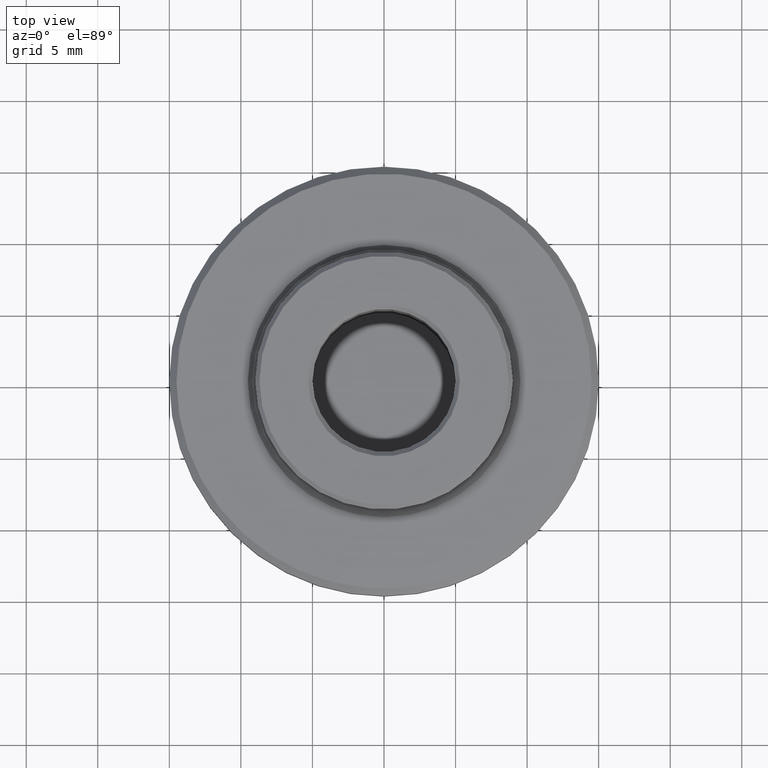
[diagram: clean part render]
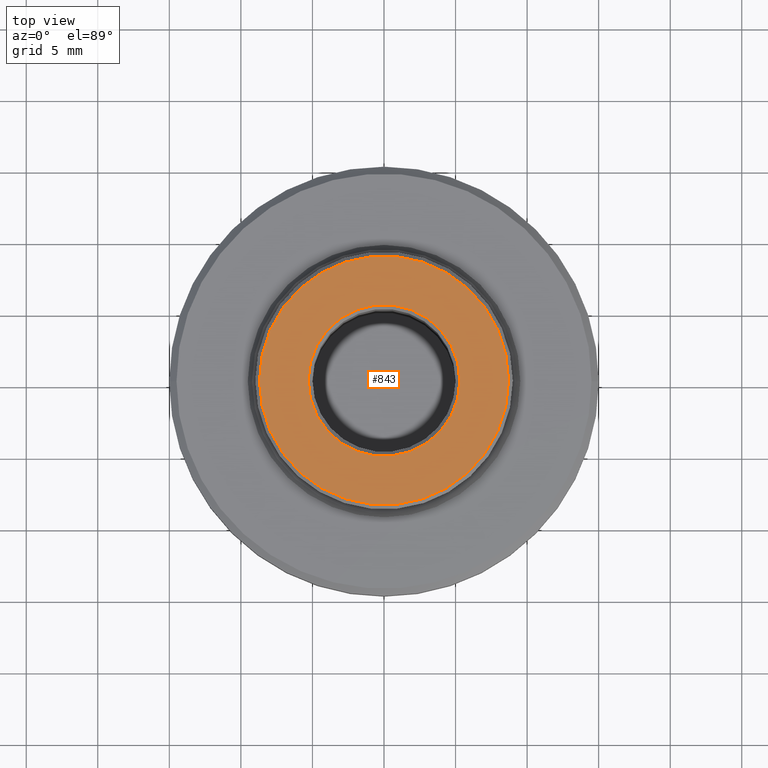
[diagram: same view with one face highlighted and labeled with its STEP entity id]
A machine part, top view. The second image highlights one B-rep face of the part: STEP entity #843.
In plain terms, the highlighted planar face has unit normal (0, 0, -1).
Its self-contained STEP definition (entity closure, byte-faithful):
#5 = EDGE_CURVE ( 'NONE', #737, #175, #946, .T. ) ;
#19 = CIRCLE ( 'NONE', #749, 5.299999999999991800 ) ;
#175 = VERTEX_POINT ( 'NONE', #1150 ) ;
#176 = ORIENTED_EDGE ( 'NONE', *, *, #1079, .T. ) ;
#209 = CARTESIAN_POINT ( 'NONE',  ( 0.0000000000000000000, 0.0000000000000000000, 15.75000000000000000 ) ) ;
#211 = CARTESIAN_POINT ( 'NONE',  ( 0.0000000000000000000, 0.0000000000000000000, 15.75000000000000000 ) ) ;
#305 = DIRECTION ( 'NONE',  ( -0.0000000000000000000, -0.0000000000000000000, 1.000000000000000000 ) ) ;
#355 = DIRECTION ( 'NONE',  ( -1.000000000000000000, 0.0000000000000000000, 0.0000000000000000000 ) ) ;
#381 = EDGE_LOOP ( 'NONE', ( #738, #1055 ) ) ;
#412 = DIRECTION ( 'NONE',  ( -1.000000000000000000, 0.0000000000000000000, 0.0000000000000000000 ) ) ;
#441 = DIRECTION ( 'NONE',  ( -0.0000000000000000000, -0.0000000000000000000, 1.000000000000000000 ) ) ;
#562 = FACE_BOUND ( 'NONE', #381, .T. ) ;
#602 = EDGE_LOOP ( 'NONE', ( #176, #1560 ) ) ;
#611 = FACE_OUTER_BOUND ( 'NONE', #602, .T. ) ;
#627 = EDGE_CURVE ( 'NONE', #1350, #1841, #19, .T. ) ;
#637 = PLANE ( 'NONE',  #991 ) ;
#682 = AXIS2_PLACEMENT_3D ( 'NONE', #1132, #305, #1278 ) ;
#737 = VERTEX_POINT ( 'NONE', #1129 ) ;
#738 = ORIENTED_EDGE ( 'NONE', *, *, #627, .T. ) ;
#749 = AXIS2_PLACEMENT_3D ( 'NONE', #211, #1236, #412 ) ;
#769 = DIRECTION ( 'NONE',  ( -1.000000000000000000, 0.0000000000000000000, 0.0000000000000000000 ) ) ;
#843 = ADVANCED_FACE ( 'NONE', ( #562, #611 ), #637, .F. ) ;
#844 = AXIS2_PLACEMENT_3D ( 'NONE', #1270, #441, #1425 ) ;
#903 = CARTESIAN_POINT ( 'NONE',  ( 7.286400000000000400, -7.286400000000000400, 15.75000000000000000 ) ) ;
#946 = CIRCLE ( 'NONE', #844, 8.700000000000002800 ) ;
#991 = AXIS2_PLACEMENT_3D ( 'NONE', #903, #1610, #769 ) ;
#1055 = ORIENTED_EDGE ( 'NONE', *, *, #1466, .T. ) ;
#1079 = EDGE_CURVE ( 'NONE', #175, #737, #1086, .T. ) ;
#1086 = CIRCLE ( 'NONE', #682, 8.700000000000002800 ) ;
#1129 = CARTESIAN_POINT ( 'NONE',  ( 8.700000000000002800, 1.083812417245407700E-015, 15.75000000000000000 ) ) ;
#1132 = CARTESIAN_POINT ( 'NONE',  ( 0.0000000000000000000, 0.0000000000000000000, 15.75000000000000000 ) ) ;
#1150 = CARTESIAN_POINT ( 'NONE',  ( -8.700000000000002800, 0.0000000000000000000, 15.75000000000000000 ) ) ;
#1179 = DIRECTION ( 'NONE',  ( 0.0000000000000000000, 0.0000000000000000000, -1.000000000000000000 ) ) ;
#1236 = DIRECTION ( 'NONE',  ( 0.0000000000000000000, 0.0000000000000000000, -1.000000000000000000 ) ) ;
#1270 = CARTESIAN_POINT ( 'NONE',  ( 0.0000000000000000000, 0.0000000000000000000, 15.75000000000000000 ) ) ;
#1278 = DIRECTION ( 'NONE',  ( -1.000000000000000000, 0.0000000000000000000, 0.0000000000000000000 ) ) ;
#1350 = VERTEX_POINT ( 'NONE', #1805 ) ;
#1355 = CIRCLE ( 'NONE', #1787, 5.299999999999991800 ) ;
#1386 = CARTESIAN_POINT ( 'NONE',  ( -5.299999999999991800, 6.490628035480962100E-016, 15.75000000000000000 ) ) ;
#1425 = DIRECTION ( 'NONE',  ( -1.000000000000000000, 0.0000000000000000000, 0.0000000000000000000 ) ) ;
#1466 = EDGE_CURVE ( 'NONE', #1841, #1350, #1355, .T. ) ;
#1560 = ORIENTED_EDGE ( 'NONE', *, *, #5, .T. ) ;
#1610 = DIRECTION ( 'NONE',  ( 0.0000000000000000000, 0.0000000000000000000, -1.000000000000000000 ) ) ;
#1787 = AXIS2_PLACEMENT_3D ( 'NONE', #209, #1179, #355 ) ;
#1805 = CARTESIAN_POINT ( 'NONE',  ( 5.299999999999991800, 0.0000000000000000000, 15.75000000000000000 ) ) ;
#1841 = VERTEX_POINT ( 'NONE', #1386 ) ;